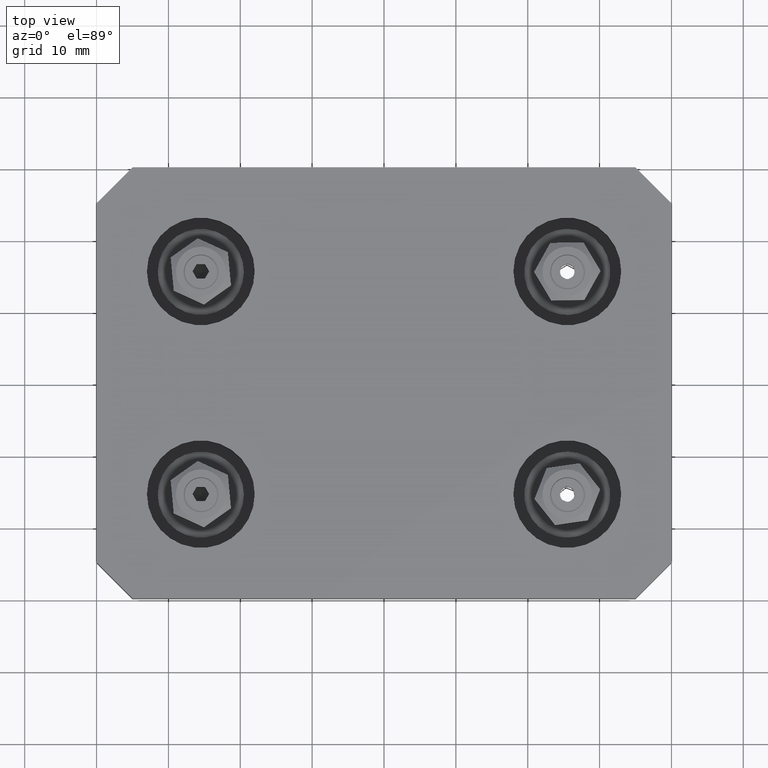
[diagram: clean part render]
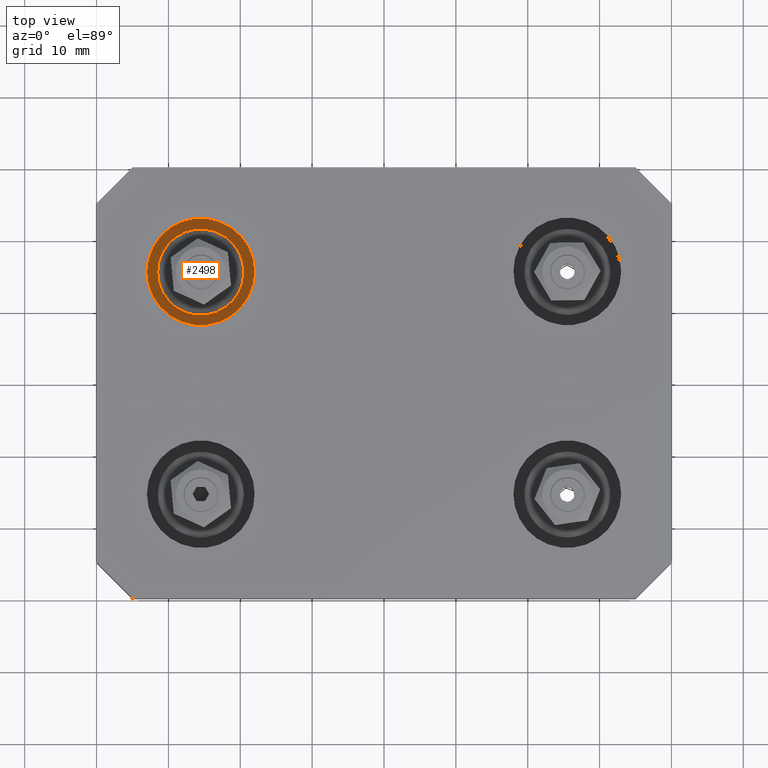
[diagram: same view with one face highlighted and labeled with its STEP entity id]
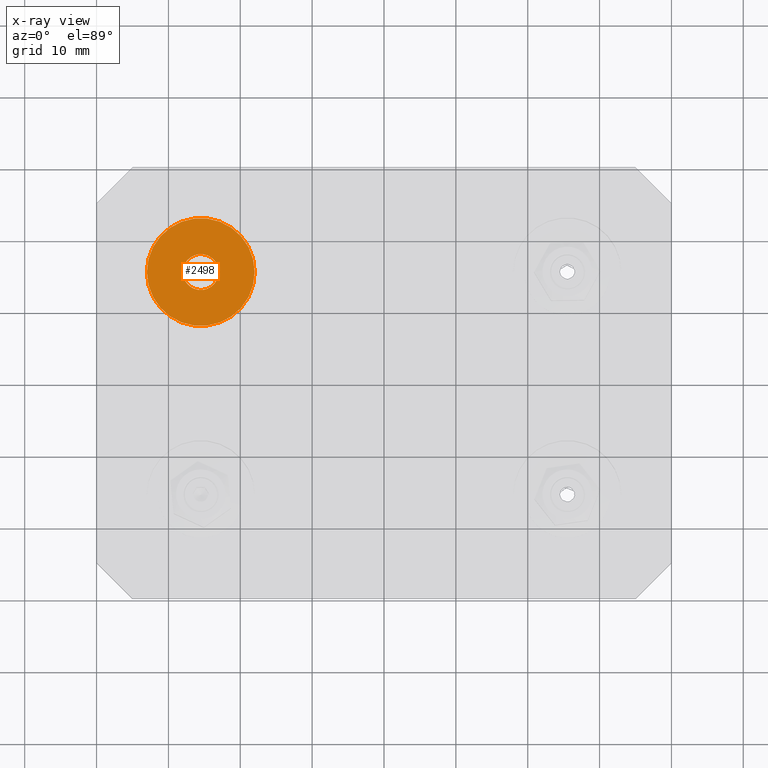
[diagram: x-ray of the same camera — body ghosted, the highlighted face saturated]
A machine part, top view. The second image highlights one B-rep face of the part: STEP entity #2498.
The next image is the same camera in x-ray: the body ghosted, the highlighted face saturated — about 0% of this face is hidden behind the body in this view.
In plain terms, the highlighted planar face has unit normal (0, 0, 1).
Its self-contained STEP definition (entity closure, byte-faithful):
#182=FACE_BOUND('',#519,.T.);
#216=CIRCLE('',#2872,7.5);
#217=CIRCLE('',#2873,2.5);
#353=FACE_OUTER_BOUND('',#518,.T.);
#518=EDGE_LOOP('',(#1739));
#519=EDGE_LOOP('',(#1740));
#1130=VERTEX_POINT('',#4086);
#1131=VERTEX_POINT('',#4088);
#1365=EDGE_CURVE('',#1130,#1130,#216,.T.);
#1366=EDGE_CURVE('',#1131,#1131,#217,.T.);
#1739=ORIENTED_EDGE('',*,*,#1365,.T.);
#1740=ORIENTED_EDGE('',*,*,#1366,.F.);
#2400=PLANE('',#2871);
#2498=ADVANCED_FACE('',(#353,#182),#2400,.T.);
#2871=AXIS2_PLACEMENT_3D('',#4085,#3240,#3241);
#2872=AXIS2_PLACEMENT_3D('',#4087,#3242,#3243);
#2873=AXIS2_PLACEMENT_3D('',#4089,#3244,#3245);
#3240=DIRECTION('center_axis',(0.,0.,1.));
#3241=DIRECTION('ref_axis',(1.,0.,0.));
#3242=DIRECTION('center_axis',(0.,0.,1.));
#3243=DIRECTION('ref_axis',(1.,0.,0.));
#3244=DIRECTION('center_axis',(0.,0.,1.));
#3245=DIRECTION('ref_axis',(1.,0.,0.));
#4085=CARTESIAN_POINT('Origin',(-25.5,15.5,2.5));
#4086=CARTESIAN_POINT('',(-33.,15.5,2.5));
#4087=CARTESIAN_POINT('Origin',(-25.5,15.5,2.5));
#4088=CARTESIAN_POINT('',(-28.,15.5,2.49999999999999));
#4089=CARTESIAN_POINT('Origin',(-25.5,15.5,2.49999999999999));